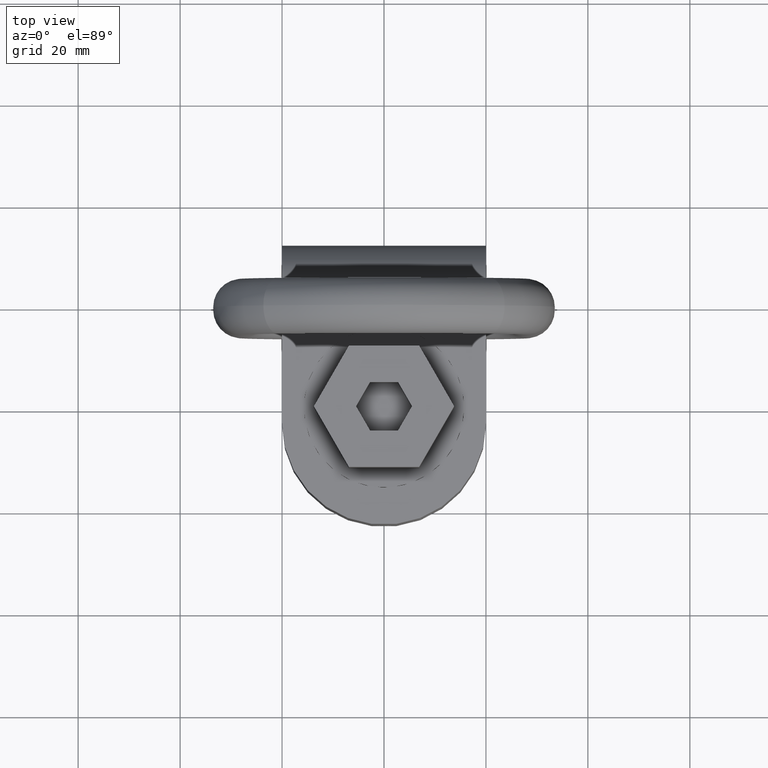
[diagram: clean part render]
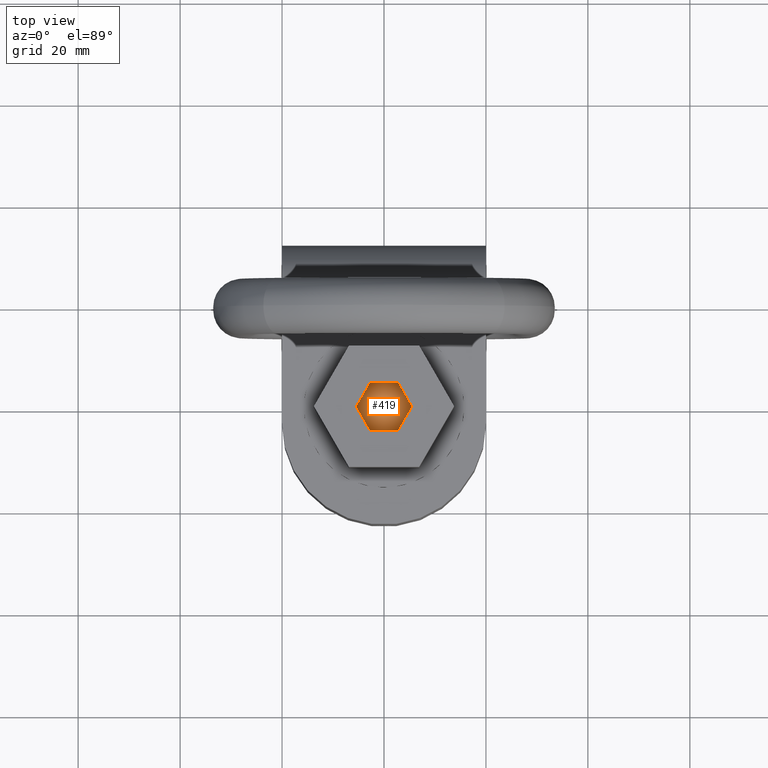
[diagram: same view with one face highlighted and labeled with its STEP entity id]
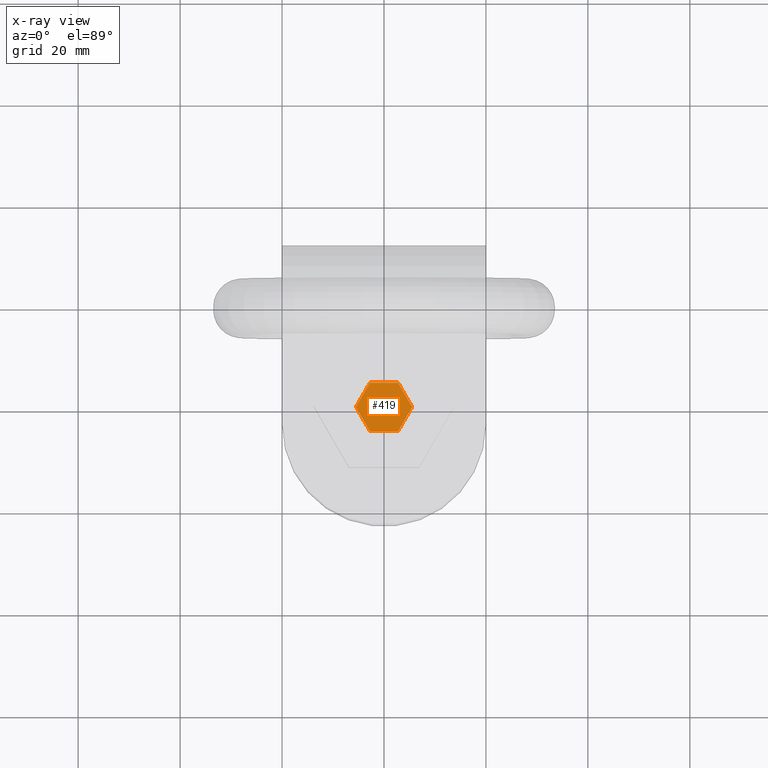
[diagram: x-ray of the same camera — body ghosted, the highlighted face saturated]
A machine part, top view. The second image highlights one B-rep face of the part: STEP entity #419.
The next image is the same camera in x-ray: the body ghosted, the highlighted face saturated — about 0% of this face is hidden behind the body in this view.
In plain terms, the highlighted planar face has unit normal (0, 0, 1).
Its self-contained STEP definition (entity closure, byte-faithful):
#251=FACE_OUTER_BOUND('',#651,.T.);
#357=PLANE('',#2465);
#419=ADVANCED_FACE('',(#251),#357,.T.);
#651=EDGE_LOOP('',(#1276,#1277,#1278,#1279,#1280,#1281));
#816=LINE('',#3865,#942);
#819=LINE('',#3871,#945);
#821=LINE('',#3875,#947);
#823=LINE('',#3879,#949);
#825=LINE('',#3883,#951);
#826=LINE('',#3885,#952);
#942=VECTOR('',#2681,1.);
#945=VECTOR('',#2686,1.);
#947=VECTOR('',#2690,1.);
#949=VECTOR('',#2694,1.);
#951=VECTOR('',#2698,1.);
#952=VECTOR('',#2701,1.);
#1276=ORIENTED_EDGE('',*,*,#2039,.F.);
#1277=ORIENTED_EDGE('',*,*,#2042,.F.);
#1278=ORIENTED_EDGE('',*,*,#2044,.F.);
#1279=ORIENTED_EDGE('',*,*,#2046,.F.);
#1280=ORIENTED_EDGE('',*,*,#2048,.F.);
#1281=ORIENTED_EDGE('',*,*,#2049,.F.);
#1818=VERTEX_POINT('',#3864);
#1819=VERTEX_POINT('',#3866);
#1820=VERTEX_POINT('',#3870);
#1821=VERTEX_POINT('',#3874);
#1822=VERTEX_POINT('',#3878);
#1823=VERTEX_POINT('',#3882);
#2039=EDGE_CURVE('',#1818,#1819,#816,.T.);
#2042=EDGE_CURVE('',#1820,#1818,#819,.T.);
#2044=EDGE_CURVE('',#1821,#1820,#821,.T.);
#2046=EDGE_CURVE('',#1822,#1821,#823,.T.);
#2048=EDGE_CURVE('',#1823,#1822,#825,.T.);
#2049=EDGE_CURVE('',#1819,#1823,#826,.T.);
#2465=AXIS2_PLACEMENT_3D('',#3887,#2704,#2705);
#2681=DIRECTION('',(-0.5,0.866025403784438,0.));
#2686=DIRECTION('',(-1.,0.,0.));
#2690=DIRECTION('',(-0.5,-0.866025403784438,0.));
#2694=DIRECTION('',(0.5,-0.866025403784438,0.));
#2698=DIRECTION('',(1.,0.,0.));
#2701=DIRECTION('',(0.5,0.866025403784438,0.));
#2704=DIRECTION('',(0.,0.,1.));
#2705=DIRECTION('',(1.,0.,0.));
#3864=CARTESIAN_POINT('',(-2.74963065701559,-4.76249999999999,28.975));
#3865=CARTESIAN_POINT('',(-5.49926131403119,1.15463194561016E-14,28.975));
#3866=CARTESIAN_POINT('',(-5.49926131403119,1.15463194561016E-14,28.975));
#3870=CARTESIAN_POINT('',(2.74963065701559,-4.76249999999999,28.975));
#3871=CARTESIAN_POINT('',(-2.74963065701559,-4.76249999999999,28.975));
#3874=CARTESIAN_POINT('',(5.49926131403119,1.04083408558608E-14,28.975));
#3875=CARTESIAN_POINT('',(2.74963065701559,-4.76249999999999,28.975));
#3878=CARTESIAN_POINT('',(2.74963065701559,4.76250000000001,28.975));
#3879=CARTESIAN_POINT('',(5.49926131403119,1.15463194561016E-14,28.975));
#3882=CARTESIAN_POINT('',(-2.74963065701559,4.76250000000001,28.975));
#3883=CARTESIAN_POINT('',(2.74963065701559,4.76250000000001,28.975));
#3885=CARTESIAN_POINT('',(-2.74963065701559,4.76250000000001,28.975));
#3887=CARTESIAN_POINT('',(0.,0.,28.975));